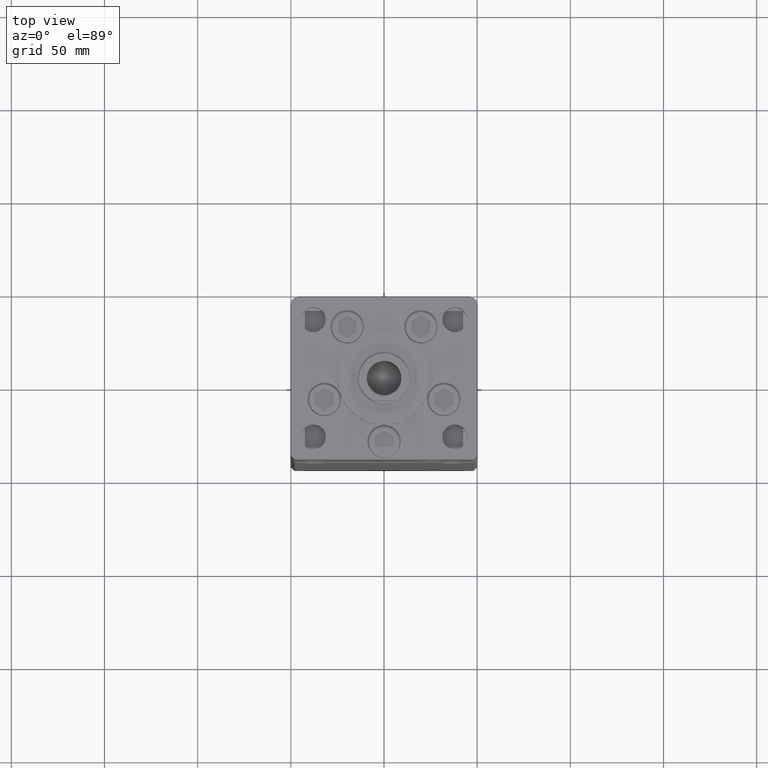
[diagram: clean part render]
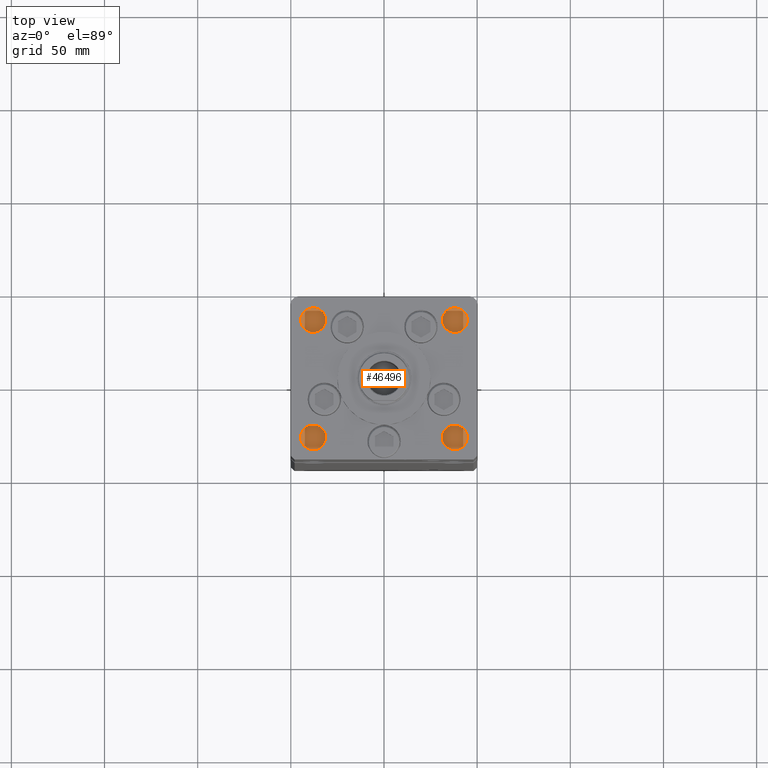
[diagram: same view with one face highlighted and labeled with its STEP entity id]
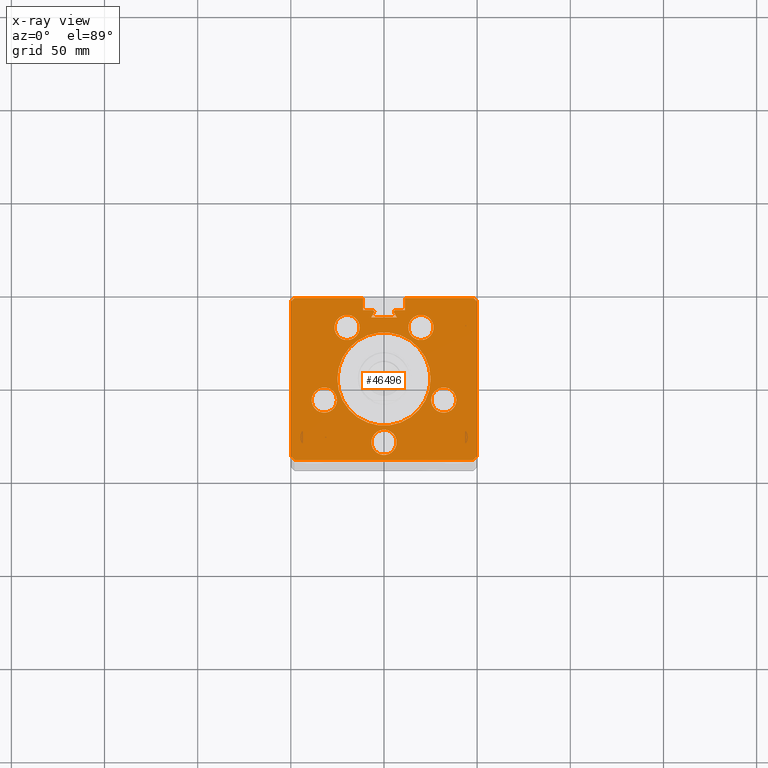
[diagram: x-ray of the same camera — body ghosted, the highlighted face saturated]
A machine part, top view. The second image highlights one B-rep face of the part: STEP entity #46496.
The next image is the same camera in x-ray: the body ghosted, the highlighted face saturated — about 0% of this face is hidden behind the body in this view.
In plain terms, the highlighted planar face has unit normal (0, 0, -1).
Its self-contained STEP definition (entity closure, byte-faithful):
#1 = CIRCLE ( 'NONE', #14625, 6.749999999999999112 ) ;
#32 = VECTOR ( 'NONE', #28188, 1000.000000000000000 ) ;
#201 = ORIENTED_EDGE ( 'NONE', *, *, #46039, .T. ) ;
#225 = VERTEX_POINT ( 'NONE', #3036 ) ;
#801 = AXIS2_PLACEMENT_3D ( 'NONE', #12778, #49866, #45833 ) ;
#962 = DIRECTION ( 'NONE',  ( -0.7071067811865487940, -0.7071067811865463515, 0.000000000000000000 ) ) ;
#1267 = EDGE_CURVE ( 'NONE', #225, #37455, #26217, .T. ) ;
#1480 = VERTEX_POINT ( 'NONE', #32894 ) ;
#1638 = VERTEX_POINT ( 'NONE', #31248 ) ;
#1716 = CARTESIAN_POINT ( 'NONE',  ( 38.80550741379015278, -11.33333333333334103, 318.5000000000000000 ) ) ;
#1807 = CIRCLE ( 'NONE', #30130, 25.00000000000000000 ) ;
#2016 = CARTESIAN_POINT ( 'NONE',  ( 0.000000000000000000, 37.00000000000000000, 318.5000000000000000 ) ) ;
#2052 = DIRECTION ( 'NONE',  ( 1.000000000000000000, 0.000000000000000000, 0.000000000000000000 ) ) ;
#2082 = CARTESIAN_POINT ( 'NONE',  ( -5.249999999999995559, 36.06666666666599497, 318.5000000000000000 ) ) ;
#2773 = DIRECTION ( 'NONE',  ( 0.7071067811865474617, -0.7071067811865474617, 0.000000000000000000 ) ) ;
#2816 = CARTESIAN_POINT ( 'NONE',  ( 49.99999999999998579, -41.49999999999999289, 318.5000000000000000 ) ) ;
#2941 = LINE ( 'NONE', #44570, #32 ) ;
#2951 = DIRECTION ( 'NONE',  ( -1.000000000000000000, 0.000000000000000000, 0.000000000000000000 ) ) ;
#3036 = CARTESIAN_POINT ( 'NONE',  ( 11.24999999999999645, 37.00000000000000000, 318.5000000000000000 ) ) ;
#3150 = EDGE_LOOP ( 'NONE', ( #46154, #3674 ) ) ;
#3189 = CARTESIAN_POINT ( 'NONE',  ( -11.24999999999999645, 43.50000000000000000, 318.5000000000000000 ) ) ;
#3674 = ORIENTED_EDGE ( 'NONE', *, *, #44719, .F. ) ;
#4084 = LINE ( 'NONE', #41174, #43527 ) ;
#4179 = EDGE_CURVE ( 'NONE', #42672, #6643, #49579, .T. ) ;
#4188 = VECTOR ( 'NONE', #2951, 1000.000000000000000 ) ;
#4356 = DIRECTION ( 'NONE',  ( 0.000000000000000000, 0.000000000000000000, -1.000000000000000000 ) ) ;
#4610 = EDGE_CURVE ( 'NONE', #37966, #6643, #46856, .T. ) ;
#5248 = FACE_BOUND ( 'NONE', #13507, .T. ) ;
#5297 = ORIENTED_EDGE ( 'NONE', *, *, #11339, .F. ) ;
#5456 = EDGE_CURVE ( 'NONE', #20726, #20776, #49911, .T. ) ;
#5556 = CARTESIAN_POINT ( 'NONE',  ( 19.44653440471351757, 11.22746187336663404, 318.5000000000000000 ) ) ;
#5874 = EDGE_CURVE ( 'NONE', #14323, #37455, #26495, .T. ) ;
#6643 = VERTEX_POINT ( 'NONE', #32353 ) ;
#6815 = DIRECTION ( 'NONE',  ( 1.000000000000000000, 0.000000000000000000, 0.000000000000000000 ) ) ;
#6847 = VERTEX_POINT ( 'NONE', #17800 ) ;
#6902 = AXIS2_PLACEMENT_3D ( 'NONE', #45505, #16490, #37194 ) ;
#7198 = CARTESIAN_POINT ( 'NONE',  ( 0.000000000000000000, 32.99999999999986500, 318.5000000000000000 ) ) ;
#7587 = EDGE_CURVE ( 'NONE', #33399, #13002, #17923, .T. ) ;
#8033 = VERTEX_POINT ( 'NONE', #9149 ) ;
#8121 = DIRECTION ( 'NONE',  ( 1.000000000000000000, 0.000000000000000000, 0.000000000000000000 ) ) ;
#8390 = CARTESIAN_POINT ( 'NONE',  ( 13.07068048781374081, 27.62500000000000000, 318.5000000000000000 ) ) ;
#8948 = CIRCLE ( 'NONE', #27006, 6.749999999999999112 ) ;
#9095 = ORIENTED_EDGE ( 'NONE', *, *, #43353, .F. ) ;
#9149 = CARTESIAN_POINT ( 'NONE',  ( -6.749999999999997335, -34.00000000000000000, 318.5000000000000000 ) ) ;
#9720 = CARTESIAN_POINT ( 'NONE',  ( 49.99999999999998579, -41.49999999999999289, 318.5000000000000000 ) ) ;
#10095 = VERTEX_POINT ( 'NONE', #1716 ) ;
#10544 = DIRECTION ( 'NONE',  ( 1.000000000000000000, 0.000000000000000000, 0.000000000000000000 ) ) ;
#10679 = VERTEX_POINT ( 'NONE', #47781 ) ;
#10815 = LINE ( 'NONE', #27237, #45786 ) ;
#11338 = VERTEX_POINT ( 'NONE', #22663 ) ;
#11339 = EDGE_CURVE ( 'NONE', #10095, #11509, #1, .T. ) ;
#11509 = VERTEX_POINT ( 'NONE', #16955 ) ;
#12704 = VECTOR ( 'NONE', #43703, 1000.000000000000000 ) ;
#12778 = CARTESIAN_POINT ( 'NONE',  ( 19.82068048781374259, 27.62500000000000000, 318.5000000000000000 ) ) ;
#12890 = CARTESIAN_POINT ( 'NONE',  ( -32.05550741379015278, -11.33333333333334458, 318.5000000000000000 ) ) ;
#13002 = VERTEX_POINT ( 'NONE', #14732 ) ;
#13507 = EDGE_LOOP ( 'NONE', ( #9095, #20377 ) ) ;
#14014 = DIRECTION ( 'NONE',  ( 0.000000000000000000, 0.000000000000000000, 1.000000000000000000 ) ) ;
#14107 = DIRECTION ( 'NONE',  ( -1.000000000000000000, 0.000000000000000000, 0.000000000000000000 ) ) ;
#14323 = VERTEX_POINT ( 'NONE', #28836 ) ;
#14625 = AXIS2_PLACEMENT_3D ( 'NONE', #18361, #31516, #39059 ) ;
#14732 = CARTESIAN_POINT ( 'NONE',  ( -38.80550741379015278, -11.33333333333334458, 318.5000000000000000 ) ) ;
#14846 = DIRECTION ( 'NONE',  ( -0.000000000000000000, 0.000000000000000000, 1.000000000000000000 ) ) ;
#15239 = AXIS2_PLACEMENT_3D ( 'NONE', #20498, #4356, #40927 ) ;
#15451 = ORIENTED_EDGE ( 'NONE', *, *, #39656, .F. ) ;
#15767 = VERTEX_POINT ( 'NONE', #50777 ) ;
#16038 = ORIENTED_EDGE ( 'NONE', *, *, #28857, .F. ) ;
#16160 = VECTOR ( 'NONE', #6815, 1000.000000000000000 ) ;
#16164 = ORIENTED_EDGE ( 'NONE', *, *, #4610, .T. ) ;
#16216 = DIRECTION ( 'NONE',  ( 0.000000000000000000, 0.000000000000000000, 1.000000000000000000 ) ) ;
#16289 = CARTESIAN_POINT ( 'NONE',  ( 0.000000000000000000, 0.000000000000000000, 318.5000000000000000 ) ) ;
#16303 = CIRCLE ( 'NONE', #36928, 6.749999999999999112 ) ;
#16451 = DIRECTION ( 'NONE',  ( 1.000000000000000000, 0.000000000000000000, 0.000000000000000000 ) ) ;
#16481 = LINE ( 'NONE', #46016, #24760 ) ;
#16490 = DIRECTION ( 'NONE',  ( -0.000000000000000000, 0.000000000000000000, 1.000000000000000000 ) ) ;
#16508 = ORIENTED_EDGE ( 'NONE', *, *, #7587, .F. ) ;
#16704 = CARTESIAN_POINT ( 'NONE',  ( -19.82068048781374259, 27.62499999999999645, 318.5000000000000000 ) ) ;
#16814 = FACE_BOUND ( 'NONE', #3150, .T. ) ;
#16924 = CARTESIAN_POINT ( 'NONE',  ( 11.24999999999998934, 43.50000000000000000, 318.5000000000000000 ) ) ;
#16955 = CARTESIAN_POINT ( 'NONE',  ( 25.30550741379015278, -11.33333333333334103, 318.5000000000000000 ) ) ;
#17101 = EDGE_CURVE ( 'NONE', #20726, #225, #26630, .T. ) ;
#17183 = AXIS2_PLACEMENT_3D ( 'NONE', #16289, #45040, #21662 ) ;
#17562 = ORIENTED_EDGE ( 'NONE', *, *, #28921, .T. ) ;
#17574 = EDGE_CURVE ( 'NONE', #1638, #24386, #42553, .T. ) ;
#17773 = EDGE_CURVE ( 'NONE', #40326, #43365, #10815, .T. ) ;
#17800 = CARTESIAN_POINT ( 'NONE',  ( -50.00000000000001421, 41.49999999999999289, 318.5000000000000000 ) ) ;
#17821 = ORIENTED_EDGE ( 'NONE', *, *, #19659, .T. ) ;
#17923 = CIRCLE ( 'NONE', #32517, 6.749999999999999112 ) ;
#18344 = DIRECTION ( 'NONE',  ( 0.7071067811865487940, -0.7071067811865463515, 0.000000000000000000 ) ) ;
#18361 = CARTESIAN_POINT ( 'NONE',  ( 32.05550741379015278, -11.33333333333334103, 318.5000000000000000 ) ) ;
#18505 = DIRECTION ( 'NONE',  ( 1.000000000000000000, 0.000000000000000000, 0.000000000000000000 ) ) ;
#18772 = DIRECTION ( 'NONE',  ( 0.000000000000000000, 0.000000000000000000, -1.000000000000000000 ) ) ;
#18796 = CARTESIAN_POINT ( 'NONE',  ( 26.57068048781373903, 27.62500000000000000, 318.5000000000000000 ) ) ;
#19051 = DIRECTION ( 'NONE',  ( -1.000000000000000000, 0.000000000000000000, 0.000000000000000000 ) ) ;
#19659 = EDGE_CURVE ( 'NONE', #48505, #37966, #22088, .T. ) ;
#19704 = EDGE_CURVE ( 'NONE', #11509, #10095, #30369, .T. ) ;
#20034 = VECTOR ( 'NONE', #35230, 1000.000000000000000 ) ;
#20377 = ORIENTED_EDGE ( 'NONE', *, *, #42219, .F. ) ;
#20498 = CARTESIAN_POINT ( 'NONE',  ( -6.183333333333996151, 36.06666666666599497, 318.5000000000000000 ) ) ;
#20726 = VERTEX_POINT ( 'NONE', #16924 ) ;
#20750 = DIRECTION ( 'NONE',  ( 0.000000000000000000, 0.000000000000000000, 1.000000000000000000 ) ) ;
#20760 = EDGE_CURVE ( 'NONE', #13002, #33399, #8948, .T. ) ;
#20776 = VERTEX_POINT ( 'NONE', #27137 ) ;
#21280 = CARTESIAN_POINT ( 'NONE',  ( 2.081899558550500280E-15, -34.00000000000000000, 318.5000000000000000 ) ) ;
#21586 = CIRCLE ( 'NONE', #37046, 0.9333333333339999260 ) ;
#21662 = DIRECTION ( 'NONE',  ( -1.000000000000000000, 0.000000000000000000, -0.000000000000000000 ) ) ;
#21878 = DIRECTION ( 'NONE',  ( 0.000000000000000000, 0.000000000000000000, -1.000000000000000000 ) ) ;
#22088 = LINE ( 'NONE', #7198, #40707 ) ;
#22235 = AXIS2_PLACEMENT_3D ( 'NONE', #53028, #16216, #43917 ) ;
#22489 = CARTESIAN_POINT ( 'NONE',  ( -19.82068048781374259, 27.62499999999999645, 318.5000000000000000 ) ) ;
#22499 = DIRECTION ( 'NONE',  ( 0.4999999999999987788, -0.8660254037844392627, 0.000000000000000000 ) ) ;
#22663 = CARTESIAN_POINT ( 'NONE',  ( 6.750000000000000888, -34.00000000000000000, 318.5000000000000000 ) ) ;
#22761 = LINE ( 'NONE', #5556, #38239 ) ;
#23051 = CARTESIAN_POINT ( 'NONE',  ( -32.05550741379015278, -11.33333333333334458, 318.5000000000000000 ) ) ;
#23119 = CARTESIAN_POINT ( 'NONE',  ( 0.000000000000000000, 37.00000000000000000, 318.5000000000000000 ) ) ;
#23197 = CIRCLE ( 'NONE', #49033, 6.749999999999999112 ) ;
#23236 = CIRCLE ( 'NONE', #6902, 25.00000000000000000 ) ;
#24222 = EDGE_CURVE ( 'NONE', #14323, #48505, #22761, .T. ) ;
#24374 = LINE ( 'NONE', #53110, #43560 ) ;
#24386 = VERTEX_POINT ( 'NONE', #9720 ) ;
#24528 = ORIENTED_EDGE ( 'NONE', *, *, #17101, .T. ) ;
#24760 = VECTOR ( 'NONE', #46286, 1000.000000000000000 ) ;
#25171 = ORIENTED_EDGE ( 'NONE', *, *, #34034, .T. ) ;
#25198 = VECTOR ( 'NONE', #50079, 1000.000000000000000 ) ;
#25678 = CIRCLE ( 'NONE', #22235, 6.749999999999999112 ) ;
#25881 = CARTESIAN_POINT ( 'NONE',  ( 25.00000000000000000, 3.061616997868383043E-15, 318.5000000000000000 ) ) ;
#26217 = LINE ( 'NONE', #2016, #49617 ) ;
#26329 = CIRCLE ( 'NONE', #28064, 6.749999999999999112 ) ;
#26337 = CIRCLE ( 'NONE', #34952, 6.749999999999999112 ) ;
#26391 = VERTEX_POINT ( 'NONE', #18796 ) ;
#26407 = LINE ( 'NONE', #46020, #46510 ) ;
#26495 = CIRCLE ( 'NONE', #34205, 0.9333333333339999260 ) ;
#26630 = LINE ( 'NONE', #30387, #20034 ) ;
#26779 = ORIENTED_EDGE ( 'NONE', *, *, #52815, .F. ) ;
#26793 = CARTESIAN_POINT ( 'NONE',  ( 19.82068048781374259, 27.62500000000000000, 318.5000000000000000 ) ) ;
#27006 = AXIS2_PLACEMENT_3D ( 'NONE', #12890, #37636, #41930 ) ;
#27009 = LINE ( 'NONE', #2816, #38818 ) ;
#27052 = DIRECTION ( 'NONE',  ( 1.000000000000000000, 0.000000000000000000, 0.000000000000000000 ) ) ;
#27137 = CARTESIAN_POINT ( 'NONE',  ( 48.00000000000000711, 43.50000000000000000, 318.5000000000000000 ) ) ;
#27237 = CARTESIAN_POINT ( 'NONE',  ( -49.99999999999998579, -41.49999999999999289, 318.5000000000000000 ) ) ;
#27393 = ORIENTED_EDGE ( 'NONE', *, *, #17574, .F. ) ;
#28044 = LINE ( 'NONE', #44429, #16160 ) ;
#28064 = AXIS2_PLACEMENT_3D ( 'NONE', #16704, #20750, #8121 ) ;
#28188 = DIRECTION ( 'NONE',  ( 3.344045254895050973E-16, -1.000000000000000000, 0.000000000000000000 ) ) ;
#28733 = VERTEX_POINT ( 'NONE', #50418 ) ;
#28819 = DIRECTION ( 'NONE',  ( 0.000000000000000000, 1.000000000000000000, 0.000000000000000000 ) ) ;
#28836 = CARTESIAN_POINT ( 'NONE',  ( 5.375042956467946276, 35.59999999999899245, 318.5000000000000000 ) ) ;
#28857 = EDGE_CURVE ( 'NONE', #8033, #11338, #26337, .T. ) ;
#28921 = EDGE_CURVE ( 'NONE', #33611, #41507, #4084, .T. ) ;
#28994 = CARTESIAN_POINT ( 'NONE',  ( -6.876153656360465050, 32.99999999999986500, 318.5000000000000000 ) ) ;
#29722 = FACE_BOUND ( 'NONE', #46630, .T. ) ;
#29782 = EDGE_LOOP ( 'NONE', ( #41995, #16038 ) ) ;
#29910 = CARTESIAN_POINT ( 'NONE',  ( 6.183333333333996151, 37.00000000000000000, 318.5000000000000000 ) ) ;
#30122 = VERTEX_POINT ( 'NONE', #8390 ) ;
#30130 = AXIS2_PLACEMENT_3D ( 'NONE', #47360, #14846, #10544 ) ;
#30369 = CIRCLE ( 'NONE', #51819, 6.749999999999999112 ) ;
#30387 = CARTESIAN_POINT ( 'NONE',  ( 11.24999999999999645, 0.000000000000000000, 318.5000000000000000 ) ) ;
#30417 = DIRECTION ( 'NONE',  ( 1.000000000000000000, 0.000000000000000000, 0.000000000000000000 ) ) ;
#31051 = CARTESIAN_POINT ( 'NONE',  ( -49.99999999999998579, -41.49999999999999289, 318.5000000000000000 ) ) ;
#31248 = CARTESIAN_POINT ( 'NONE',  ( 50.00000000000001421, 41.49999999999999289, 318.5000000000000000 ) ) ;
#31516 = DIRECTION ( 'NONE',  ( 0.000000000000000000, 0.000000000000000000, 1.000000000000000000 ) ) ;
#32353 = CARTESIAN_POINT ( 'NONE',  ( -5.375042956467946276, 35.59999999999899245, 318.5000000000000000 ) ) ;
#32517 = AXIS2_PLACEMENT_3D ( 'NONE', #23051, #39448, #50731 ) ;
#32702 = EDGE_CURVE ( 'NONE', #52780, #1480, #26329, .T. ) ;
#32894 = CARTESIAN_POINT ( 'NONE',  ( -26.57068048781373903, 27.62499999999999645, 318.5000000000000000 ) ) ;
#33101 = ORIENTED_EDGE ( 'NONE', *, *, #51277, .F. ) ;
#33219 = PLANE ( 'NONE',  #17183 ) ;
#33399 = VERTEX_POINT ( 'NONE', #35879 ) ;
#33611 = VERTEX_POINT ( 'NONE', #33688 ) ;
#33688 = CARTESIAN_POINT ( 'NONE',  ( -11.24999999999999645, 37.00000000000000000, 318.5000000000000000 ) ) ;
#33713 = CARTESIAN_POINT ( 'NONE',  ( -6.183333333333996151, 36.06666666666599497, 318.5000000000000000 ) ) ;
#34007 = CARTESIAN_POINT ( 'NONE',  ( -13.07068048781374259, 27.62499999999999645, 318.5000000000000000 ) ) ;
#34034 = EDGE_CURVE ( 'NONE', #48632, #6847, #24374, .T. ) ;
#34068 = ORIENTED_EDGE ( 'NONE', *, *, #24222, .T. ) ;
#34205 = AXIS2_PLACEMENT_3D ( 'NONE', #42434, #18772, #18505 ) ;
#34255 = CARTESIAN_POINT ( 'NONE',  ( -19.44653440471351757, 11.22746187336663404, 318.5000000000000000 ) ) ;
#34306 = ORIENTED_EDGE ( 'NONE', *, *, #44592, .F. ) ;
#34952 = AXIS2_PLACEMENT_3D ( 'NONE', #21280, #37407, #16451 ) ;
#35230 = DIRECTION ( 'NONE',  ( -0.000000000000000000, -1.000000000000000000, 0.000000000000000000 ) ) ;
#35855 = EDGE_CURVE ( 'NONE', #43365, #15767, #28044, .T. ) ;
#35879 = CARTESIAN_POINT ( 'NONE',  ( -25.30550741379015278, -11.33333333333334458, 318.5000000000000000 ) ) ;
#35985 = CARTESIAN_POINT ( 'NONE',  ( 32.05550741379015278, -11.33333333333334103, 318.5000000000000000 ) ) ;
#36019 = CIRCLE ( 'NONE', #801, 6.749999999999999112 ) ;
#36468 = ORIENTED_EDGE ( 'NONE', *, *, #1267, .T. ) ;
#36543 = EDGE_CURVE ( 'NONE', #48632, #41507, #16481, .T. ) ;
#36611 = ORIENTED_EDGE ( 'NONE', *, *, #20760, .F. ) ;
#36928 = AXIS2_PLACEMENT_3D ( 'NONE', #22489, #38887, #2052 ) ;
#37046 = AXIS2_PLACEMENT_3D ( 'NONE', #33713, #21878, #43095 ) ;
#37194 = DIRECTION ( 'NONE',  ( 1.000000000000000000, 0.000000000000000000, 0.000000000000000000 ) ) ;
#37219 = ORIENTED_EDGE ( 'NONE', *, *, #36543, .F. ) ;
#37407 = DIRECTION ( 'NONE',  ( 0.000000000000000000, 0.000000000000000000, 1.000000000000000000 ) ) ;
#37455 = VERTEX_POINT ( 'NONE', #29910 ) ;
#37636 = DIRECTION ( 'NONE',  ( 0.000000000000000000, 0.000000000000000000, 1.000000000000000000 ) ) ;
#37877 = EDGE_CURVE ( 'NONE', #10679, #33611, #48344, .T. ) ;
#37966 = VERTEX_POINT ( 'NONE', #28994 ) ;
#38023 = DIRECTION ( 'NONE',  ( 0.4999999999999987788, 0.8660254037844392627, 0.000000000000000000 ) ) ;
#38239 = VECTOR ( 'NONE', #22499, 1000.000000000000114 ) ;
#38600 = ORIENTED_EDGE ( 'NONE', *, *, #19704, .F. ) ;
#38666 = EDGE_CURVE ( 'NONE', #11338, #8033, #25678, .T. ) ;
#38818 = VECTOR ( 'NONE', #39372, 1000.000000000000114 ) ;
#38887 = DIRECTION ( 'NONE',  ( 0.000000000000000000, 0.000000000000000000, 1.000000000000000000 ) ) ;
#39059 = DIRECTION ( 'NONE',  ( 1.000000000000000000, 0.000000000000000000, 0.000000000000000000 ) ) ;
#39372 = DIRECTION ( 'NONE',  ( -0.7071067811865474617, -0.7071067811865474617, 0.000000000000000000 ) ) ;
#39448 = DIRECTION ( 'NONE',  ( 0.000000000000000000, 0.000000000000000000, 1.000000000000000000 ) ) ;
#39522 = ORIENTED_EDGE ( 'NONE', *, *, #37877, .T. ) ;
#39656 = EDGE_CURVE ( 'NONE', #26391, #30122, #36019, .T. ) ;
#39920 = ORIENTED_EDGE ( 'NONE', *, *, #53011, .F. ) ;
#40326 = VERTEX_POINT ( 'NONE', #31051 ) ;
#40707 = VECTOR ( 'NONE', #19051, 1000.000000000000000 ) ;
#40927 = DIRECTION ( 'NONE',  ( 1.000000000000000000, 0.000000000000000000, 0.000000000000000000 ) ) ;
#41174 = CARTESIAN_POINT ( 'NONE',  ( -11.24999999999999645, 0.000000000000000000, 318.5000000000000000 ) ) ;
#41507 = VERTEX_POINT ( 'NONE', #3189 ) ;
#41671 = EDGE_LOOP ( 'NONE', ( #39522, #17562, #37219, #25171, #201, #41706, #51244, #26779, #27393, #39920, #49676, #24528, #36468, #49767, #34068, #17821, #16164, #49466, #33101 ) ) ;
#41706 = ORIENTED_EDGE ( 'NONE', *, *, #17773, .T. ) ;
#41930 = DIRECTION ( 'NONE',  ( 1.000000000000000000, 0.000000000000000000, 0.000000000000000000 ) ) ;
#41995 = ORIENTED_EDGE ( 'NONE', *, *, #38666, .F. ) ;
#42086 = FACE_BOUND ( 'NONE', #42481, .T. ) ;
#42219 = EDGE_CURVE ( 'NONE', #53061, #28733, #23236, .T. ) ;
#42434 = CARTESIAN_POINT ( 'NONE',  ( 6.183333333333996151, 36.06666666666599497, 318.5000000000000000 ) ) ;
#42481 = EDGE_LOOP ( 'NONE', ( #15451, #34306 ) ) ;
#42553 = LINE ( 'NONE', #49818, #25198 ) ;
#42672 = VERTEX_POINT ( 'NONE', #2082 ) ;
#43095 = DIRECTION ( 'NONE',  ( 1.000000000000000000, 0.000000000000000000, 0.000000000000000000 ) ) ;
#43170 = DIRECTION ( 'NONE',  ( 0.000000000000000000, 0.000000000000000000, 1.000000000000000000 ) ) ;
#43353 = EDGE_CURVE ( 'NONE', #28733, #53061, #1807, .T. ) ;
#43365 = VERTEX_POINT ( 'NONE', #52461 ) ;
#43527 = VECTOR ( 'NONE', #28819, 1000.000000000000000 ) ;
#43560 = VECTOR ( 'NONE', #962, 1000.000000000000000 ) ;
#43703 = DIRECTION ( 'NONE',  ( 1.000000000000000000, 0.000000000000000000, 0.000000000000000000 ) ) ;
#43917 = DIRECTION ( 'NONE',  ( 1.000000000000000000, 0.000000000000000000, 0.000000000000000000 ) ) ;
#44429 = CARTESIAN_POINT ( 'NONE',  ( -47.99999999999998579, -43.50000000000000000, 318.5000000000000000 ) ) ;
#44570 = CARTESIAN_POINT ( 'NONE',  ( -50.00000000000001421, 41.49999999999999289, 318.5000000000000000 ) ) ;
#44592 = EDGE_CURVE ( 'NONE', #30122, #26391, #23197, .T. ) ;
#44719 = EDGE_CURVE ( 'NONE', #1480, #52780, #16303, .T. ) ;
#45040 = DIRECTION ( 'NONE',  ( 0.000000000000000000, 0.000000000000000000, -1.000000000000000000 ) ) ;
#45304 = FACE_BOUND ( 'NONE', #46863, .T. ) ;
#45505 = CARTESIAN_POINT ( 'NONE',  ( 0.000000000000000000, 0.000000000000000000, 318.5000000000000000 ) ) ;
#45786 = VECTOR ( 'NONE', #2773, 1000.000000000000114 ) ;
#45833 = DIRECTION ( 'NONE',  ( 1.000000000000000000, 0.000000000000000000, 0.000000000000000000 ) ) ;
#46016 = CARTESIAN_POINT ( 'NONE',  ( -11.24999999999999645, 43.50000000000000000, 318.5000000000000000 ) ) ;
#46020 = CARTESIAN_POINT ( 'NONE',  ( 48.00000000000000711, 43.50000000000000000, 318.5000000000000000 ) ) ;
#46039 = EDGE_CURVE ( 'NONE', #6847, #40326, #2941, .T. ) ;
#46136 = CARTESIAN_POINT ( 'NONE',  ( -11.24999999999999645, 43.50000000000000000, 318.5000000000000000 ) ) ;
#46154 = ORIENTED_EDGE ( 'NONE', *, *, #32702, .F. ) ;
#46286 = DIRECTION ( 'NONE',  ( 1.000000000000000000, 0.000000000000000000, 0.000000000000000000 ) ) ;
#46496 = ADVANCED_FACE ( 'NONE', ( #29722, #50136, #45304, #42086, #16814, #49602, #5248 ), #33219, .F. ) ;
#46510 = VECTOR ( 'NONE', #18344, 1000.000000000000000 ) ;
#46630 = EDGE_LOOP ( 'NONE', ( #16508, #36611 ) ) ;
#46856 = LINE ( 'NONE', #34255, #50450 ) ;
#46863 = EDGE_LOOP ( 'NONE', ( #5297, #38600 ) ) ;
#47110 = CARTESIAN_POINT ( 'NONE',  ( -48.00000000000000711, 43.50000000000000000, 318.5000000000000000 ) ) ;
#47360 = CARTESIAN_POINT ( 'NONE',  ( 0.000000000000000000, 0.000000000000000000, 318.5000000000000000 ) ) ;
#47781 = CARTESIAN_POINT ( 'NONE',  ( -6.183333333333996151, 37.00000000000000000, 318.5000000000000000 ) ) ;
#48344 = LINE ( 'NONE', #23119, #4188 ) ;
#48505 = VERTEX_POINT ( 'NONE', #49292 ) ;
#48632 = VERTEX_POINT ( 'NONE', #47110 ) ;
#49033 = AXIS2_PLACEMENT_3D ( 'NONE', #26793, #43170, #27052 ) ;
#49292 = CARTESIAN_POINT ( 'NONE',  ( 6.876153656360465050, 32.99999999999986500, 318.5000000000000000 ) ) ;
#49466 = ORIENTED_EDGE ( 'NONE', *, *, #4179, .F. ) ;
#49579 = CIRCLE ( 'NONE', #15239, 0.9333333333339999260 ) ;
#49602 = FACE_OUTER_BOUND ( 'NONE', #41671, .T. ) ;
#49617 = VECTOR ( 'NONE', #14107, 1000.000000000000000 ) ;
#49676 = ORIENTED_EDGE ( 'NONE', *, *, #5456, .F. ) ;
#49767 = ORIENTED_EDGE ( 'NONE', *, *, #5874, .F. ) ;
#49818 = CARTESIAN_POINT ( 'NONE',  ( 50.00000000000001421, 41.49999999999999289, 318.5000000000000000 ) ) ;
#49866 = DIRECTION ( 'NONE',  ( 0.000000000000000000, 0.000000000000000000, 1.000000000000000000 ) ) ;
#49911 = LINE ( 'NONE', #46136, #12704 ) ;
#50079 = DIRECTION ( 'NONE',  ( -3.344045254895050973E-16, -1.000000000000000000, 0.000000000000000000 ) ) ;
#50136 = FACE_BOUND ( 'NONE', #29782, .T. ) ;
#50418 = CARTESIAN_POINT ( 'NONE',  ( -25.00000000000000000, 0.000000000000000000, 318.5000000000000000 ) ) ;
#50450 = VECTOR ( 'NONE', #38023, 1000.000000000000114 ) ;
#50731 = DIRECTION ( 'NONE',  ( 1.000000000000000000, 0.000000000000000000, 0.000000000000000000 ) ) ;
#50777 = CARTESIAN_POINT ( 'NONE',  ( 47.99999999999998579, -43.50000000000000000, 318.5000000000000000 ) ) ;
#51244 = ORIENTED_EDGE ( 'NONE', *, *, #35855, .T. ) ;
#51277 = EDGE_CURVE ( 'NONE', #10679, #42672, #21586, .T. ) ;
#51819 = AXIS2_PLACEMENT_3D ( 'NONE', #35985, #14014, #30417 ) ;
#52461 = CARTESIAN_POINT ( 'NONE',  ( -47.99999999999998579, -43.50000000000000000, 318.5000000000000000 ) ) ;
#52780 = VERTEX_POINT ( 'NONE', #34007 ) ;
#52815 = EDGE_CURVE ( 'NONE', #24386, #15767, #27009, .T. ) ;
#53011 = EDGE_CURVE ( 'NONE', #20776, #1638, #26407, .T. ) ;
#53028 = CARTESIAN_POINT ( 'NONE',  ( 2.081899558550500280E-15, -34.00000000000000000, 318.5000000000000000 ) ) ;
#53061 = VERTEX_POINT ( 'NONE', #25881 ) ;
#53110 = CARTESIAN_POINT ( 'NONE',  ( -48.00000000000000711, 43.50000000000000000, 318.5000000000000000 ) ) ;